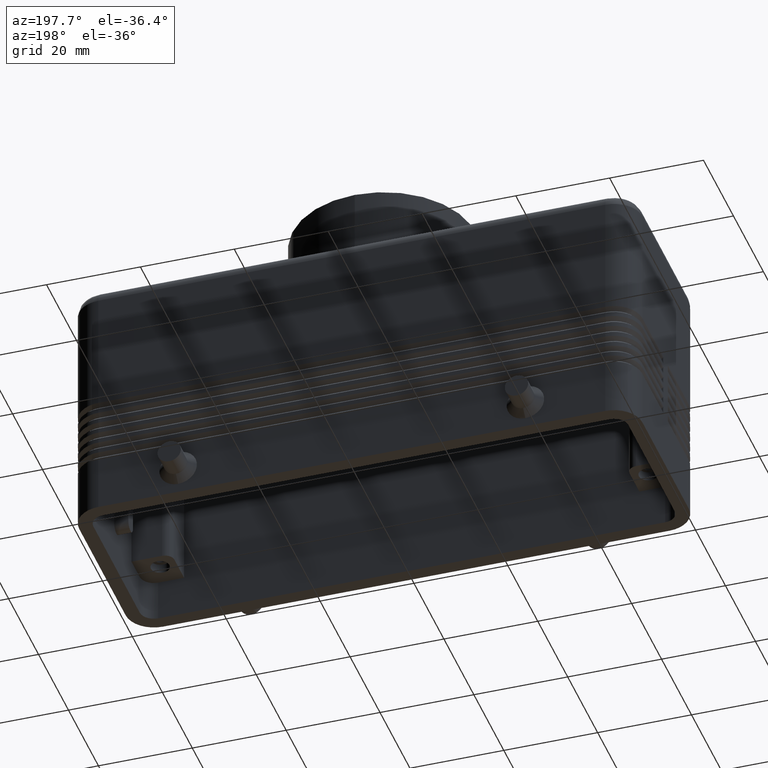
[diagram: clean part render]
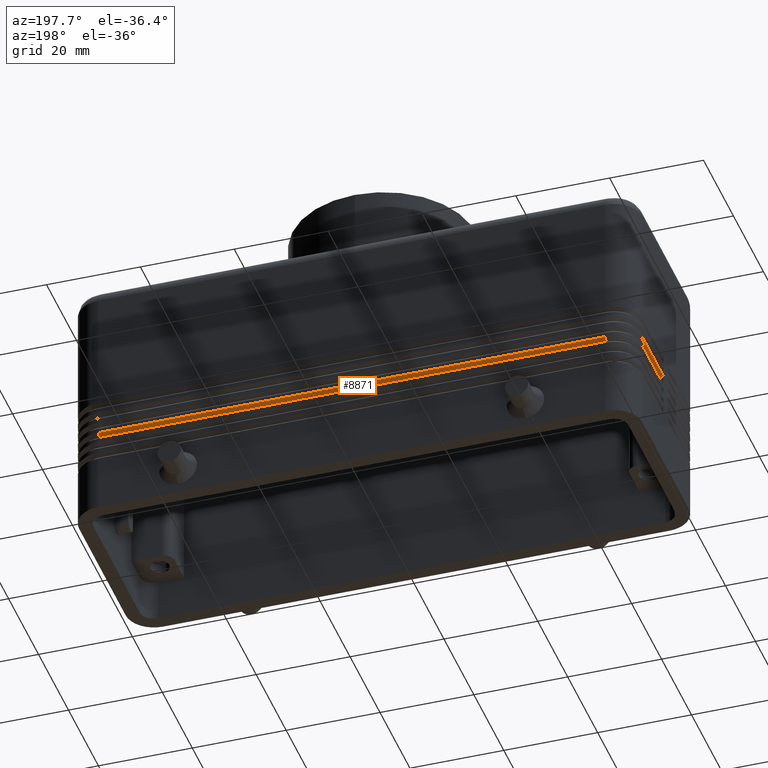
[diagram: same view with one face highlighted and labeled with its STEP entity id]
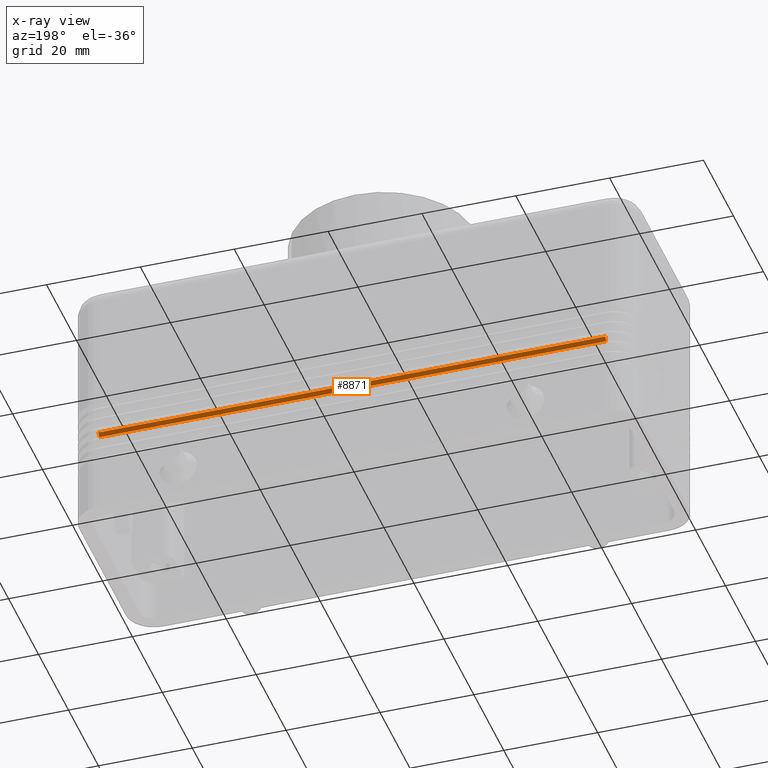
[diagram: x-ray of the same camera — body ghosted, the highlighted face saturated]
A machine part, auxiliary view. The second image highlights one B-rep face of the part: STEP entity #8871.
The next image is the same camera in x-ray: the body ghosted, the highlighted face saturated — about 0% of this face is hidden behind the body in this view.
In plain terms, the highlighted planar face has unit normal (0, 0.7071, -0.7071).
Its self-contained STEP definition (entity closure, byte-faithful):
#1968=CARTESIAN_POINT('',(54.0,21.500000000000000,18.750000000000021));
#1969=VERTEX_POINT('',#1968);
#2219=CARTESIAN_POINT('',(-53.999999999999986,21.500000000000000,18.750000000000000));
#2220=VERTEX_POINT('',#2219);
#2516=CARTESIAN_POINT('',(54.000000000000014,20.799999999999979,18.050000000000004));
#2517=VERTEX_POINT('',#2516);
#2525=CARTESIAN_POINT('',(54.000000000000014,20.799999999999979,18.050000000000004));
#2526=DIRECTION('',(-1.435513E-014,0.707106781186549,0.707106781186546));
#2527=VECTOR('',#2526,0.989949493661193);
#2528=LINE('',#2525,#2527);
#2529=EDGE_CURVE('',#2517,#1969,#2528,.T.);
#8843=CARTESIAN_POINT('',(4.857226E-015,21.150000000000002,18.400000000000002));
#8844=DIRECTION('',(4.570837E-034,0.707106781186548,-0.707106781186548));
#8845=DIRECTION('',(-1.0,0.0,0.0));
#8846=AXIS2_PLACEMENT_3D('',#8843,#8844,#8845);
#8847=PLANE('',#8846);
#8848=ORIENTED_EDGE('',*,*,#2529,.F.);
#8849=CARTESIAN_POINT('',(-53.999999999999993,20.800000000000001,18.050000000000004));
#8850=VERTEX_POINT('',#8849);
#8851=CARTESIAN_POINT('',(-53.999999999999993,20.800000000000001,18.050000000000004));
#8852=DIRECTION('',(1.0,0.0,0.0));
#8853=VECTOR('',#8852,108.0);
#8854=LINE('',#8851,#8853);
#8855=EDGE_CURVE('',#8850,#2517,#8854,.T.);
#8856=ORIENTED_EDGE('',*,*,#8855,.F.);
#8857=CARTESIAN_POINT('',(-53.999999999999993,20.800000000000001,18.050000000000004));
#8858=DIRECTION('',(7.177566E-015,0.707106781186549,0.707106781186546));
#8859=VECTOR('',#8858,0.989949493661163);
#8860=LINE('',#8857,#8859);
#8861=EDGE_CURVE('',#8850,#2220,#8860,.T.);
#8862=ORIENTED_EDGE('',*,*,#8861,.T.);
#8863=CARTESIAN_POINT('',(-53.999999999999986,21.500000000000000,18.750000000000000));
#8864=DIRECTION('',(1.0,0.0,0.0));
#8865=VECTOR('',#8864,107.999999999999990);
#8866=LINE('',#8863,#8865);
#8867=EDGE_CURVE('',#2220,#1969,#8866,.T.);
#8868=ORIENTED_EDGE('',*,*,#8867,.T.);
#8869=EDGE_LOOP('',(#8848,#8856,#8862,#8868));
#8870=FACE_OUTER_BOUND('',#8869,.T.);
#8871=ADVANCED_FACE('',(#8870),#8847,.T.);